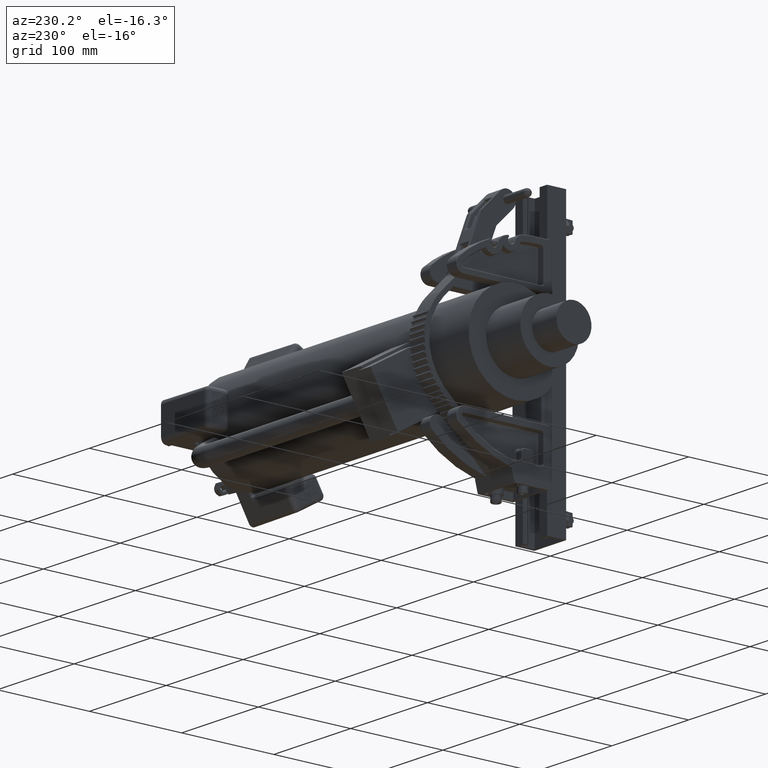
[diagram: clean part render]
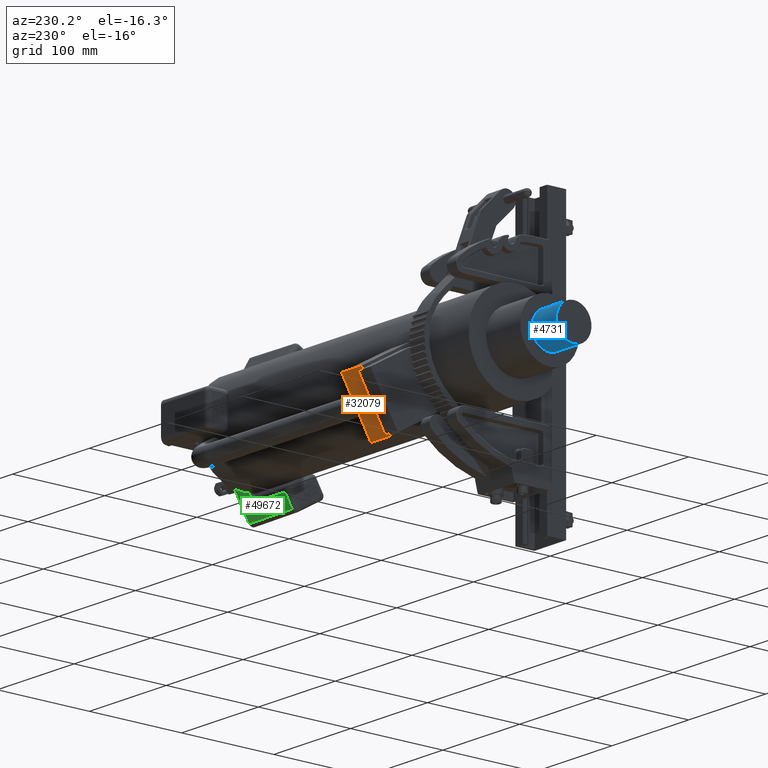
[diagram: same view with three faces highlighted in distinct colors, each labeled with its STEP entity id]
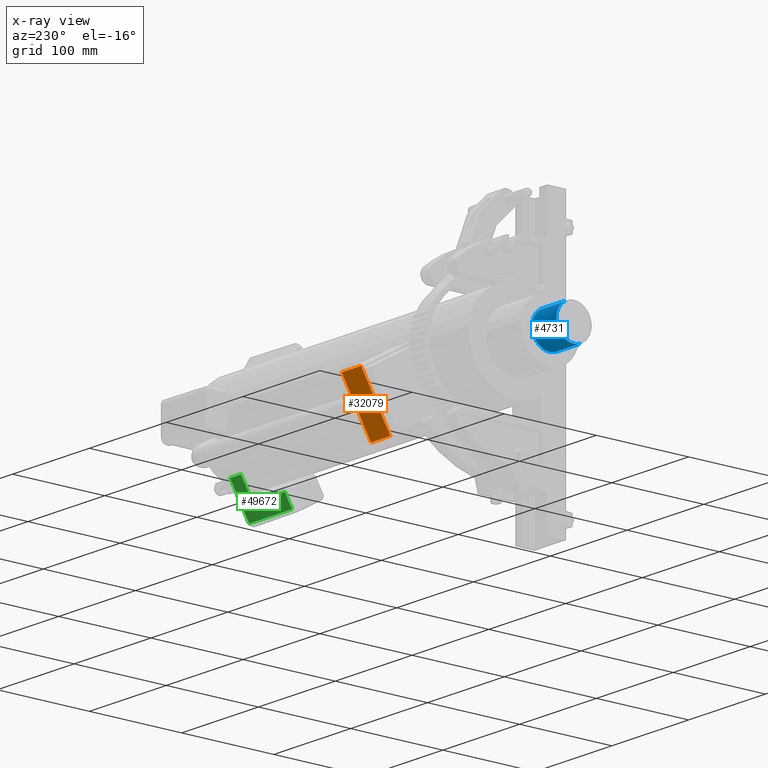
[diagram: x-ray of the same camera — body ghosted, the three highlighted faces saturated]
A machine part, auxiliary view with three faces highlighted in distinct colors.
The next image is the same camera in x-ray (body ghosted, the three faces saturated) — at least one of them is partly hidden behind the body in this view.
Their STEP definitions:

[orange] entity #32079 — the highlighted planar face has unit normal (-0, 0.866, -0.5).
#1959 = EDGE_LOOP ( 'NONE', ( #29872, #14958, #18051, #37274, #3638, #22728 ) ) ;
#2639 = LINE ( 'NONE', #30922, #23493 ) ;
#3291 = CARTESIAN_POINT ( 'NONE',  ( 4.000000000000003600, 11.00000000000000200, 1.250000000000000200 ) ) ;
#3638 = ORIENTED_EDGE ( 'NONE', *, *, #23456, .T. ) ;
#6705 = LINE ( 'NONE', #40237, #16465 ) ;
#6902 = DIRECTION ( 'NONE',  ( 0.0000000000000000000, 5.440752092893936500E-033, 1.000000000000000000 ) ) ;
#7161 = VECTOR ( 'NONE', #52350, 39.37007874015748100 ) ;
#7217 = VECTOR ( 'NONE', #17715, 39.37007874015748100 ) ;
#10844 = DIRECTION ( 'NONE',  ( 0.0000000000000000000, -5.440752092893935800E-033, -1.000000000000000000 ) ) ;
#12058 = EDGE_CURVE ( 'NONE', #26004, #28594, #6705, .T. ) ;
#14958 = ORIENTED_EDGE ( 'NONE', *, *, #51222, .T. ) ;
#16115 = VECTOR ( 'NONE', #52997, 39.37007874015748100 ) ;
#16465 = VECTOR ( 'NONE', #6902, 39.37007874015748100 ) ;
#17715 = DIRECTION ( 'NONE',  ( 0.0000000000000000000, -5.440752092893936500E-033, -1.000000000000000000 ) ) ;
#18051 = ORIENTED_EDGE ( 'NONE', *, *, #39425, .T. ) ;
#22612 = CARTESIAN_POINT ( 'NONE',  ( 4.000000000000003600, 10.00000000000000200, 1.250000000000000200 ) ) ;
#22728 = ORIENTED_EDGE ( 'NONE', *, *, #24222, .T. ) ;
#23456 = EDGE_CURVE ( 'NONE', #28594, #23559, #2639, .T. ) ;
#23493 = VECTOR ( 'NONE', #35130, 39.37007874015748100 ) ;
#23559 = VERTEX_POINT ( 'NONE', #43021 ) ;
#24222 = EDGE_CURVE ( 'NONE', #23559, #38096, #40409, .T. ) ;
#26004 = VERTEX_POINT ( 'NONE', #43551 ) ;
#26561 = EDGE_CURVE ( 'NONE', #38096, #38744, #46876, .T. ) ;
#27189 = CARTESIAN_POINT ( 'NONE',  ( 4.000000000000003600, 11.00000000000000200, 1.250000000000000200 ) ) ;
#27418 = PLANE ( 'NONE',  #29012 ) ;
#28008 = CARTESIAN_POINT ( 'NONE',  ( 4.000000000000002700, 11.00000000000000200, -1.250000000000002000 ) ) ;
#28594 = VERTEX_POINT ( 'NONE', #51700 ) ;
#29012 = AXIS2_PLACEMENT_3D ( 'NONE', #44023, #35826, #10844 ) ;
#29872 = ORIENTED_EDGE ( 'NONE', *, *, #26561, .T. ) ;
#30922 = CARTESIAN_POINT ( 'NONE',  ( 4.000000000000003600, 11.00000000000000200, 1.250000000000000200 ) ) ;
#32079 = ADVANCED_FACE ( 'NONE', ( #33440 ), #27418, .T. ) ;
#33440 = FACE_OUTER_BOUND ( 'NONE', #1959, .T. ) ;
#35130 = DIRECTION ( 'NONE',  ( 0.0000000000000000000, 5.440752092893936500E-033, 1.000000000000000000 ) ) ;
#35783 = VECTOR ( 'NONE', #53220, 39.37007874015748100 ) ;
#35802 = CARTESIAN_POINT ( 'NONE',  ( 4.000000000000002700, 10.00000000000000200, -1.250000000000002000 ) ) ;
#35826 = DIRECTION ( 'NONE',  ( 1.000000000000000000, 2.113708113964989400E-032, -1.150016184482191000E-064 ) ) ;
#37274 = ORIENTED_EDGE ( 'NONE', *, *, #12058, .T. ) ;
#38096 = VERTEX_POINT ( 'NONE', #46749 ) ;
#38664 = CARTESIAN_POINT ( 'NONE',  ( 4.000000000000003600, 10.00000000000000200, 1.250000000000000200 ) ) ;
#38744 = VERTEX_POINT ( 'NONE', #22612 ) ;
#39425 = EDGE_CURVE ( 'NONE', #53461, #26004, #51995, .T. ) ;
#40237 = CARTESIAN_POINT ( 'NONE',  ( 4.000000000000003600, 11.00000000000000200, 1.250000000000000200 ) ) ;
#40409 = LINE ( 'NONE', #27189, #7161 ) ;
#43021 = CARTESIAN_POINT ( 'NONE',  ( 4.000000000000003600, 11.00000000000000200, 1.150000000000000400 ) ) ;
#43551 = CARTESIAN_POINT ( 'NONE',  ( 4.000000000000002700, 11.00000000000000200, -1.250000000000002000 ) ) ;
#44023 = CARTESIAN_POINT ( 'NONE',  ( 4.000000000000003600, 10.00000000000000200, 1.250000000000000200 ) ) ;
#46749 = CARTESIAN_POINT ( 'NONE',  ( 4.000000000000003600, 11.00000000000000200, 1.250000000000000200 ) ) ;
#46876 = LINE ( 'NONE', #3291, #35783 ) ;
#51222 = EDGE_CURVE ( 'NONE', #38744, #53461, #51534, .T. ) ;
#51534 = LINE ( 'NONE', #38664, #7217 ) ;
#51700 = CARTESIAN_POINT ( 'NONE',  ( 4.000000000000002700, 11.00000000000000200, -1.150000000000003700 ) ) ;
#51995 = LINE ( 'NONE', #28008, #16115 ) ;
#52350 = DIRECTION ( 'NONE',  ( 0.0000000000000000000, 5.440752092893936500E-033, 1.000000000000000000 ) ) ;
#52997 = DIRECTION ( 'NONE',  ( 1.598521853841405800E-032, 1.000000000000000000, 3.659266894335748100E-033 ) ) ;
#53220 = DIRECTION ( 'NONE',  ( -1.598521853841405800E-032, -1.000000000000000000, -3.659266894335748100E-033 ) ) ;
#53461 = VERTEX_POINT ( 'NONE', #35802 ) ;

[blue] entity #4731 — the highlighted cylindrical surface (edge-blend (fillet) strip) has radius 19.05 mm, axis along (1, 0, 0).
#906 = DIRECTION ( 'NONE',  ( -1.598521853841405800E-032, -1.000000000000000000, -3.659266894335748100E-033 ) ) ;
#2072 = DIRECTION ( 'NONE',  ( -1.598521853841405800E-032, -1.000000000000000000, -3.659266894335748100E-033 ) ) ;
#4731 = ADVANCED_FACE ( 'NONE', ( #46869 ), #45558, .T. ) ;
#6105 = EDGE_CURVE ( 'NONE', #47957, #34862, #6982, .T. ) ;
#6982 = LINE ( 'NONE', #17496, #8270 ) ;
#8270 = VECTOR ( 'NONE', #906, 39.37007874015748100 ) ;
#10512 = VERTEX_POINT ( 'NONE', #45141 ) ;
#12004 = ORIENTED_EDGE ( 'NONE', *, *, #6105, .F. ) ;
#13680 = EDGE_CURVE ( 'NONE', #34862, #10512, #35234, .T. ) ;
#14074 = CARTESIAN_POINT ( 'NONE',  ( 0.0000000000000000000, 15.74999999999999800, -0.7500000000000007800 ) ) ;
#15100 = AXIS2_PLACEMENT_3D ( 'NONE', #49230, #24233, #53416 ) ;
#16928 = CARTESIAN_POINT ( 'NONE',  ( 0.0000000000000000000, 17.00000000000000000, 0.0000000000000000000 ) ) ;
#17496 = CARTESIAN_POINT ( 'NONE',  ( 0.0000000000000000000, -4.080564069670456000E-033, -0.7500000000000007800 ) ) ;
#21110 = DIRECTION ( 'NONE',  ( 0.0000000000000000000, 0.0000000000000000000, -1.000000000000000000 ) ) ;
#21659 = ORIENTED_EDGE ( 'NONE', *, *, #21692, .T. ) ;
#21692 = EDGE_CURVE ( 'NONE', #48419, #10512, #24960, .T. ) ;
#22512 = CARTESIAN_POINT ( 'NONE',  ( 9.184850993605157100E-017, 4.080564069670455300E-033, 0.7500000000000007800 ) ) ;
#24041 = AXIS2_PLACEMENT_3D ( 'NONE', #27028, #2072, #51839 ) ;
#24233 = DIRECTION ( 'NONE',  ( -1.598521853841405800E-032, -1.000000000000000000, -3.659266894335748100E-033 ) ) ;
#24960 = LINE ( 'NONE', #22512, #47144 ) ;
#27028 = CARTESIAN_POINT ( 'NONE',  ( 0.0000000000000000000, 0.0000000000000000000, 0.0000000000000000000 ) ) ;
#31306 = CIRCLE ( 'NONE', #51163, 0.7500000000000007800 ) ;
#31417 = CARTESIAN_POINT ( 'NONE',  ( 0.0000000000000000000, 17.00000000000000000, -0.7500000000000007800 ) ) ;
#34862 = VERTEX_POINT ( 'NONE', #14074 ) ;
#35234 = CIRCLE ( 'NONE', #15100, 0.7500000000000007800 ) ;
#43451 = DIRECTION ( 'NONE',  ( -1.598521853841405800E-032, -1.000000000000000000, -3.659266894335748100E-033 ) ) ;
#45141 = CARTESIAN_POINT ( 'NONE',  ( 9.184850993605174300E-017, 15.74999999999999800, 0.7500000000000001100 ) ) ;
#45303 = EDGE_CURVE ( 'NONE', #47957, #48419, #31306, .T. ) ;
#45558 = CYLINDRICAL_SURFACE ( 'NONE', #24041, 0.7500000000000007800 ) ;
#46096 = DIRECTION ( 'NONE',  ( -1.598521853841405800E-032, -1.000000000000000000, -3.659266894335748100E-033 ) ) ;
#46869 = FACE_OUTER_BOUND ( 'NONE', #50615, .T. ) ;
#47144 = VECTOR ( 'NONE', #43451, 39.37007874015748100 ) ;
#47278 = CARTESIAN_POINT ( 'NONE',  ( 9.184850993605174300E-017, 17.00000000000000000, 0.7500000000000001100 ) ) ;
#47667 = ORIENTED_EDGE ( 'NONE', *, *, #45303, .T. ) ;
#47957 = VERTEX_POINT ( 'NONE', #31417 ) ;
#48419 = VERTEX_POINT ( 'NONE', #47278 ) ;
#49230 = CARTESIAN_POINT ( 'NONE',  ( 0.0000000000000000000, 15.74999999999999800, 0.0000000000000000000 ) ) ;
#50615 = EDGE_LOOP ( 'NONE', ( #47667, #21659, #53972, #12004 ) ) ;
#51163 = AXIS2_PLACEMENT_3D ( 'NONE', #16928, #46096, #21110 ) ;
#51839 = DIRECTION ( 'NONE',  ( 0.0000000000000000000, -5.440752092893935800E-033, -1.000000000000000000 ) ) ;
#53416 = DIRECTION ( 'NONE',  ( 0.0000000000000000000, 0.0000000000000000000, -1.000000000000000000 ) ) ;
#53972 = ORIENTED_EDGE ( 'NONE', *, *, #13680, .F. ) ;

[green] entity #49672 — the highlighted planar face has unit normal (-0.0087, 0.866, -0.5).
#1871 = LINE ( 'NONE', #12694, #32516 ) ;
#3152 = CARTESIAN_POINT ( 'NONE',  ( -0.8125000000000001100, 0.7500000000000015500, 0.0000000000000000000 ) ) ;
#4471 = EDGE_CURVE ( 'NONE', #32254, #18818, #1871, .T. ) ;
#4563 = LINE ( 'NONE', #11223, #15635 ) ;
#4757 = VERTEX_POINT ( 'NONE', #27581 ) ;
#5353 = CARTESIAN_POINT ( 'NONE',  ( -0.8125000000000001100, 0.7500000000000015500, 0.0000000000000000000 ) ) ;
#5751 = ORIENTED_EDGE ( 'NONE', *, *, #14215, .F. ) ;
#6637 = ORIENTED_EDGE ( 'NONE', *, *, #53424, .F. ) ;
#6651 = DIRECTION ( 'NONE',  ( -1.000000000000000000, -1.942890293094026900E-016, 6.249154987899476200E-017 ) ) ;
#7331 = DIRECTION ( 'NONE',  ( 8.299300263543136400E-017, 0.9999619230641713100, 0.008726535498373990200 ) ) ;
#7692 = DIRECTION ( 'NONE',  ( 6.488022212457118800E-017, 0.008726535498373988500, -0.9999619230641712000 ) ) ;
#8727 = DIRECTION ( 'NONE',  ( -1.000000000000000000, -1.942890293094026900E-016, 6.249154987899476200E-017 ) ) ;
#10540 = CARTESIAN_POINT ( 'NONE',  ( 0.8124999999999990000, 0.7450911368676989000, 0.5625000000000003300 ) ) ;
#10885 = CARTESIAN_POINT ( 'NONE',  ( -0.1366539242281093500, 0.7448090842730473700, 0.5948200260866816100 ) ) ;
#11223 = CARTESIAN_POINT ( 'NONE',  ( -0.8125000000000001100, 0.7500000000000015500, 0.0000000000000000000 ) ) ;
#12694 = CARTESIAN_POINT ( 'NONE',  ( -0.2033103084452823100, 0.7308956975849217900, 2.189136225405944500 ) ) ;
#14215 = EDGE_CURVE ( 'NONE', #32254, #46690, #4563, .T. ) ;
#14422 = CARTESIAN_POINT ( 'NONE',  ( -0.1880337031181061300, 0.7445502943241253400, 0.6244744170006413200 ) ) ;
#15085 = CARTESIAN_POINT ( 'NONE',  ( -0.08176697764924240100, 0.7450070848915838500, 0.5721314024838110000 ) ) ;
#15150 = ORIENTED_EDGE ( 'NONE', *, *, #49733, .T. ) ;
#15635 = VECTOR ( 'NONE', #36217, 39.37007874015748100 ) ;
#17518 = CARTESIAN_POINT ( 'NONE',  ( -0.2016882998573082400, 0.7308956975849229000, 2.189136225405944500 ) ) ;
#18818 = VERTEX_POINT ( 'NONE', #17518 ) ;
#19291 = CARTESIAN_POINT ( 'NONE',  ( -0.03828721253267981100, 0.7450911368676994600, 0.5625000000000004400 ) ) ;
#20243 = CARTESIAN_POINT ( 'NONE',  ( 0.8124999999999980000, 0.7500000000000007800, 0.0000000000000000000 ) ) ;
#22342 = VERTEX_POINT ( 'NONE', #53133 ) ;
#22463 = VECTOR ( 'NONE', #7692, 39.37007874015748100 ) ;
#22807 = VERTEX_POINT ( 'NONE', #14422 ) ;
#22809 = LINE ( 'NONE', #33678, #44991 ) ;
#23315 = ORIENTED_EDGE ( 'NONE', *, *, #31632, .T. ) ;
#23388 = ORIENTED_EDGE ( 'NONE', *, *, #4471, .T. ) ;
#27078 = VECTOR ( 'NONE', #48687, 39.37007874015748900 ) ;
#27279 = CARTESIAN_POINT ( 'NONE',  ( -0.1880337031181061300, 0.7445502943241253400, 0.6244744170006413200 ) ) ;
#27581 = CARTESIAN_POINT ( 'NONE',  ( 0.8124999999999980000, 0.7500000000000007800, 0.0000000000000000000 ) ) ;
#28078 = PLANE ( 'NONE',  #35280 ) ;
#28145 = VERTEX_POINT ( 'NONE', #10540 ) ;
#31577 = CARTESIAN_POINT ( 'NONE',  ( -0.8124999999999980000, 0.7450911368676994600, 0.5625000000000003300 ) ) ;
#31632 = EDGE_CURVE ( 'NONE', #22807, #22342, #37563, .T. ) ;
#32254 = VERTEX_POINT ( 'NONE', #45292 ) ;
#32326 = LINE ( 'NONE', #35735, #27078 ) ;
#32516 = VECTOR ( 'NONE', #41851, 39.37007874015748100 ) ;
#33678 = CARTESIAN_POINT ( 'NONE',  ( -0.8125000000000001100, 0.7500000000000015500, 0.0000000000000000000 ) ) ;
#34384 = VECTOR ( 'NONE', #6651, 39.37007874015748100 ) ;
#35280 = AXIS2_PLACEMENT_3D ( 'NONE', #3152, #7331, #36468 ) ;
#35735 = CARTESIAN_POINT ( 'NONE',  ( -0.1826319634186325300, 0.7499520340235988900, 0.005496356488135009800 ) ) ;
#36217 = DIRECTION ( 'NONE',  ( 6.488022212457118800E-017, 0.008726535498373988500, -0.9999619230641712000 ) ) ;
#36468 = DIRECTION ( 'NONE',  ( -6.488022212457118800E-017, -0.008726535498373988500, 0.9999619230641712000 ) ) ;
#37434 = EDGE_CURVE ( 'NONE', #4757, #46690, #22809, .T. ) ;
#37466 = FACE_OUTER_BOUND ( 'NONE', #48181, .T. ) ;
#37563 = B_SPLINE_CURVE_WITH_KNOTS ( 'NONE', 3,
 ( #27279, #44065, #10885, #40067, #15085, #44241, #19291, #48446 ),
 .UNSPECIFIED., .F., .F.,
 ( 4, 2, 2, 4 ),
 ( -1.380287450449192700E-005, 0.002240371661302076600, 0.003367458929205361800, 0.004494546197108647400 ),
 .UNSPECIFIED. ) ;
#40067 = CARTESIAN_POINT ( 'NONE',  ( -0.09586452335921746800, 0.7449624529813868600, 0.5772457128259449500 ) ) ;
#40567 = EDGE_CURVE ( 'NONE', #18818, #22807, #32326, .T. ) ;
#41851 = DIRECTION ( 'NONE',  ( 1.000000000000000000, 1.942890293094026900E-016, -6.249154987899476200E-017 ) ) ;
#42656 = ORIENTED_EDGE ( 'NONE', *, *, #40567, .T. ) ;
#44065 = CARTESIAN_POINT ( 'NONE',  ( -0.1624151607795586700, 0.7446793778393188100, 0.6096829112406535500 ) ) ;
#44241 = CARTESIAN_POINT ( 'NONE',  ( -0.05293524088783827700, 0.7450712871759843600, 0.5647745493791559400 ) ) ;
#44653 = LINE ( 'NONE', #20243, #22463 ) ;
#44991 = VECTOR ( 'NONE', #8727, 39.37007874015748100 ) ;
#45292 = CARTESIAN_POINT ( 'NONE',  ( -0.8124999999999990000, 0.7308956975849232300, 2.189136225405920600 ) ) ;
#45492 = LINE ( 'NONE', #31577, #34384 ) ;
#46690 = VERTEX_POINT ( 'NONE', #5353 ) ;
#48181 = EDGE_LOOP ( 'NONE', ( #5751, #23388, #42656, #23315, #6637, #15150, #51077 ) ) ;
#48446 = CARTESIAN_POINT ( 'NONE',  ( -0.02326304064028331800, 0.7450911368676991200, 0.5625000000000003300 ) ) ;
#48687 = DIRECTION ( 'NONE',  ( 0.008726203243944290200, 0.008726203243944272900, -0.9999238504775703800 ) ) ;
#49672 = ADVANCED_FACE ( 'NONE', ( #37466 ), #28078, .T. ) ;
#49733 = EDGE_CURVE ( 'NONE', #28145, #4757, #44653, .T. ) ;
#51077 = ORIENTED_EDGE ( 'NONE', *, *, #37434, .T. ) ;
#53133 = CARTESIAN_POINT ( 'NONE',  ( -0.02326304064028331800, 0.7450911368676991200, 0.5625000000000003300 ) ) ;
#53424 = EDGE_CURVE ( 'NONE', #28145, #22342, #45492, .T. ) ;